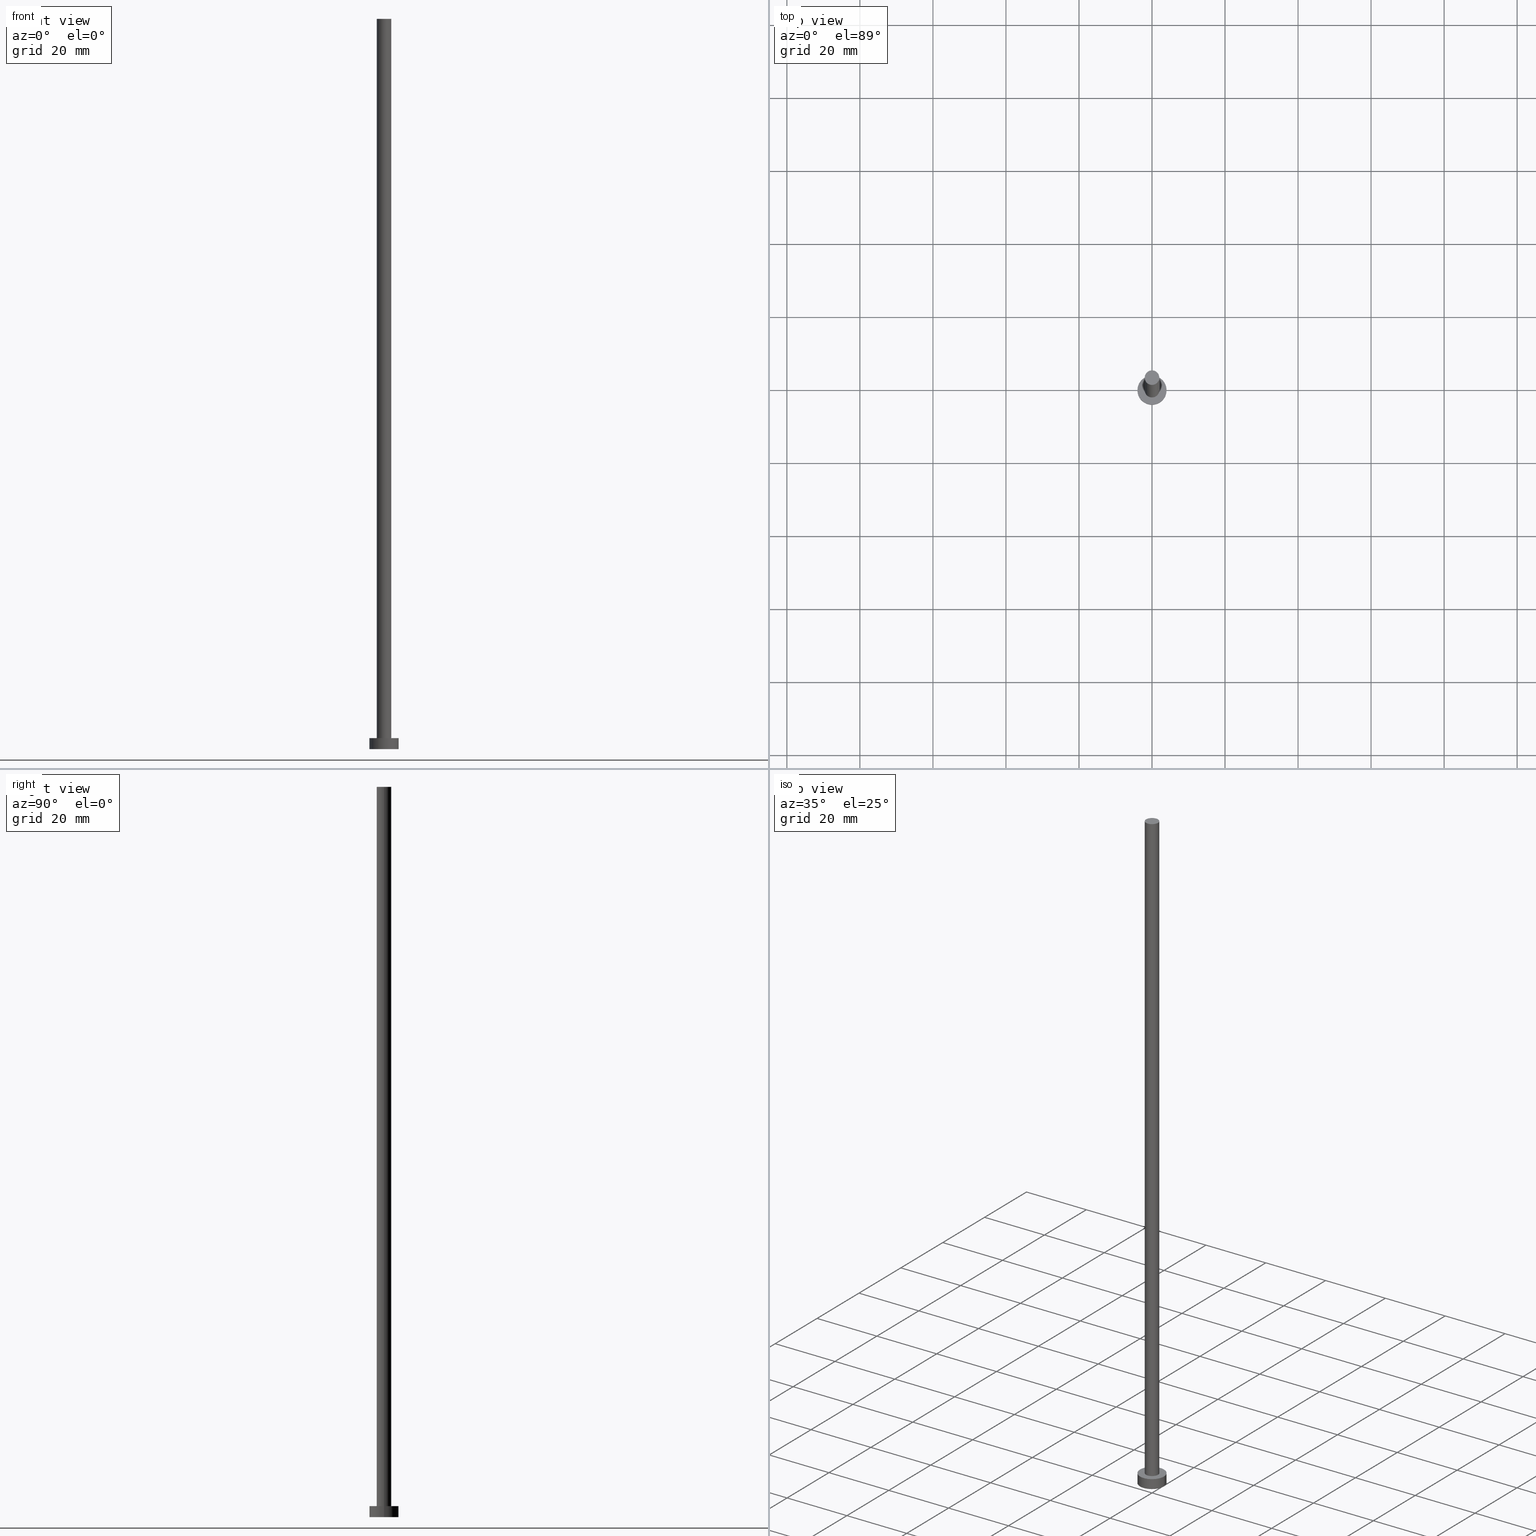
[diagram: canonical four-view strip — front | top / right | iso, engineering-drawing reading convention]
A machine part, canonical four-view strip (front | top / right | iso — engineering-drawing reading convention). The complete STEP part file that produces these views, byte-faithful:
ISO-10303-21;
HEADER;
FILE_DESCRIPTION (( 'STEP AP203' ),
    '1' );
FILE_NAME ('1355.STEP',
    '2023-02-12T12:39:28',
    ( '' ),
    ( '' ),
    'SwSTEP 2.0',
    'SolidWorks 2019',
    '' );
FILE_SCHEMA (( 'CONFIG_CONTROL_DESIGN' ));
ENDSEC;

DATA;
#1 = EDGE_CURVE ( 'NONE', #139, #216, #58, .T. ) ;
#2 = EDGE_LOOP ( 'NONE', ( #188, #251 ) ) ;
#3 = DIRECTION ( 'NONE',  ( 1.000000000000000000, 0.000000000000000000, 0.000000000000000000 ) ) ;
#4 = CC_DESIGN_DATE_AND_TIME_ASSIGNMENT ( #89, #248, ( #192 ) ) ;
#5 = PERSON_AND_ORGANIZATION_ROLE ( 'classification_officer' ) ;
#6 = ORIENTED_EDGE ( 'NONE', *, *, #223, .T. ) ;
#7 = DATE_TIME_ROLE ( 'classification_date' ) ;
#8 = MECHANICAL_CONTEXT ( 'NONE', #21, 'mechanical' ) ;
#9 = AXIS2_PLACEMENT_3D ( 'NONE', #142, #220, #178 ) ;
#10 = COORDINATED_UNIVERSAL_TIME_OFFSET ( 1, 0, .AHEAD. ) ;
#11 = ADVANCED_FACE ( 'NONE', ( #37 ), #201, .T. ) ;
#12 = PRODUCT_RELATED_PRODUCT_CATEGORY ( 'detail', '', ( #96 ) ) ;
#13 = ORIENTED_EDGE ( 'NONE', *, *, #181, .F. ) ;
#14 = DIRECTION ( 'NONE',  ( -0.000000000000000000, -0.000000000000000000, -1.000000000000000000 ) ) ;
#15 = UNCERTAINTY_MEASURE_WITH_UNIT (LENGTH_MEASURE( 1.000000000000000082E-05 ), #166, 'distance_accuracy_value', 'NONE');
#16 = FACE_OUTER_BOUND ( 'NONE', #177, .T. ) ;
#17 = ORIENTED_EDGE ( 'NONE', *, *, #41, .F. ) ;
#18 = CLOSED_SHELL ( 'NONE', ( #11, #57, #102, #239, #33, #53, #206 ) ) ;
#19 = CIRCLE ( 'NONE', #170, 4.000000000000000000 ) ;
#20 = CIRCLE ( 'NONE', #129, 4.000000000000000000 ) ;
#21 = APPLICATION_CONTEXT ( 'configuration controlled 3d designs of mechanical parts and assemblies' ) ;
#22 = EDGE_CURVE ( 'NONE', #193, #243, #45, .T. ) ;
#23 = CC_DESIGN_APPROVAL ( #86, ( #148 ) ) ;
#24 = PERSON ( 'NEUR�EN�', 'NEUR�EN�', 'NEUR�EN�', ('NEUR�EN�'), ('NEUR�EN�'), ('NEUR�EN�') ) ;
#25 =( NAMED_UNIT ( * ) SI_UNIT ( $, .STERADIAN. ) SOLID_ANGLE_UNIT ( ) );
#26 = DATE_AND_TIME ( #30, #210 ) ;
#27 = PERSON_AND_ORGANIZATION ( #24, #159 ) ;
#28 = APPROVAL_PERSON_ORGANIZATION ( #69, #86, #207 ) ;
#29 = ORIENTED_EDGE ( 'NONE', *, *, #223, .F. ) ;
#30 = CALENDAR_DATE ( 2023, 12, 2 ) ;
#31 = DIRECTION ( 'NONE',  ( -0.000000000000000000, -0.000000000000000000, -1.000000000000000000 ) ) ;
#32 = DATE_AND_TIME ( #68, #113 ) ;
#33 = ADVANCED_FACE ( 'NONE', ( #151 ), #88, .F. ) ;
#34 = LOCAL_TIME ( 13, 39, 28.00000000000000000, #171 ) ;
#35 = EDGE_CURVE ( 'NONE', #243, #193, #165, .T. ) ;
#36 = CARTESIAN_POINT ( 'NONE',  ( -2.000000000000000000, 0.000000000000000000, 3.000000000000000000 ) ) ;
#37 = FACE_OUTER_BOUND ( 'NONE', #77, .T. ) ;
#38 = ORIENTED_EDGE ( 'NONE', *, *, #136, .F. ) ;
#39 = CC_DESIGN_APPROVAL ( #48, ( #195 ) ) ;
#40 = CARTESIAN_POINT ( 'NONE',  ( 4.000000000000000000, 4.898587196589412829E-16, 0.000000000000000000 ) ) ;
#41 = EDGE_CURVE ( 'NONE', #224, #216, #20, .T. ) ;
#42 = DIRECTION ( 'NONE',  ( 1.000000000000000000, 0.000000000000000000, 0.000000000000000000 ) ) ;
#43 = APPROVAL_DATE_TIME ( #179, #48 ) ;
#44 = CARTESIAN_POINT ( 'NONE',  ( 0.000000000000000000, 0.000000000000000000, 0.000000000000000000 ) ) ;
#45 = CIRCLE ( 'NONE', #133, 2.000000000000000000 ) ;
#46 = APPROVAL_PERSON_ORGANIZATION ( #50, #218, #183 ) ;
#47 = COORDINATED_UNIVERSAL_TIME_OFFSET ( 1, 0, .AHEAD. ) ;
#48 = APPROVAL ( #152, 'NEUR�EN�' ) ;
#49 = APPLICATION_PROTOCOL_DEFINITION ( 'international standard', 'config_control_design', 1994, #21 ) ;
#50 = PERSON_AND_ORGANIZATION ( #24, #159 ) ;
#51 = AXIS2_PLACEMENT_3D ( 'NONE', #146, #31, #153 ) ;
#52 = CYLINDRICAL_SURFACE ( 'NONE', #194, 4.000000000000000000 ) ;
#53 = ADVANCED_FACE ( 'NONE', ( #209 ), #107, .T. ) ;
#54 = EDGE_LOOP ( 'NONE', ( #6, #108 ) ) ;
#55 = APPROVAL_ROLE ( '' ) ;
#56 = CARTESIAN_POINT ( 'NONE',  ( 4.000000000000000000, 4.898587196589412829E-16, 3.000000000000000000 ) ) ;
#57 = ADVANCED_FACE ( 'NONE', ( #70 ), #52, .T. ) ;
#58 = LINE ( 'NONE', #138, #90 ) ;
#59 = DIRECTION ( 'NONE',  ( 1.000000000000000000, 0.000000000000000000, -0.000000000000000000 ) ) ;
#60 = VERTEX_POINT ( 'NONE', #186 ) ;
#61 = FACE_OUTER_BOUND ( 'NONE', #54, .T. ) ;
#62 = DIRECTION ( 'NONE',  ( 0.000000000000000000, 0.000000000000000000, 1.000000000000000000 ) ) ;
#63 = DIRECTION ( 'NONE',  ( 1.000000000000000000, 0.000000000000000000, -0.000000000000000000 ) ) ;
#64 = ORIENTED_EDGE ( 'NONE', *, *, #136, .T. ) ;
#65 = CC_DESIGN_PERSON_AND_ORGANIZATION_ASSIGNMENT ( #83, #5, ( #148 ) ) ;
#66 = CIRCLE ( 'NONE', #222, 2.000000000000000000 ) ;
#67 = EDGE_LOOP ( 'NONE', ( #128, #75 ) ) ;
#68 = CALENDAR_DATE ( 2023, 12, 2 ) ;
#69 = PERSON_AND_ORGANIZATION ( #24, #159 ) ;
#70 = FACE_OUTER_BOUND ( 'NONE', #147, .T. ) ;
#71 = CC_DESIGN_APPROVAL ( #218, ( #192 ) ) ;
#72 = DIRECTION ( 'NONE',  ( -0.000000000000000000, -0.000000000000000000, -1.000000000000000000 ) ) ;
#73 = EDGE_CURVE ( 'NONE', #149, #243, #120, .T. ) ;
#74 = CALENDAR_DATE ( 2023, 12, 2 ) ;
#75 = ORIENTED_EDGE ( 'NONE', *, *, #35, .F. ) ;
#76 = LINE ( 'NONE', #56, #217 ) ;
#77 = EDGE_LOOP ( 'NONE', ( #162, #246, #126, #38 ) ) ;
#78 = VECTOR ( 'NONE', #154, 1000.000000000000000 ) ;
#79 = EDGE_CURVE ( 'NONE', #119, #139, #117, .T. ) ;
#80 = FACE_OUTER_BOUND ( 'NONE', #2, .T. ) ;
#81 =( GEOMETRIC_REPRESENTATION_CONTEXT ( 3 ) GLOBAL_UNCERTAINTY_ASSIGNED_CONTEXT ( ( #15 ) ) GLOBAL_UNIT_ASSIGNED_CONTEXT ( ( #166, #232, #25 ) ) REPRESENTATION_CONTEXT ( 'NONE', 'WORKASPACE' ) );
#82 = SECURITY_CLASSIFICATION_LEVEL ( 'unclassified' ) ;
#83 = PERSON_AND_ORGANIZATION ( #24, #159 ) ;
#84 = ORIENTED_EDGE ( 'NONE', *, *, #1, .T. ) ;
#85 = APPLICATION_PROTOCOL_DEFINITION ( 'international standard', 'config_control_design', 1994, #156 ) ;
#86 = APPROVAL ( #164, 'NEUR�EN�' ) ;
#87 = CARTESIAN_POINT ( 'NONE',  ( 2.000000000000000000, 2.449293598294706414E-16, 3.000000000000000000 ) ) ;
#88 = PLANE ( 'NONE',  #104 ) ;
#89 = DATE_AND_TIME ( #74, #34 ) ;
#90 = VECTOR ( 'NONE', #219, 1000.000000000000000 ) ;
#91 = CARTESIAN_POINT ( 'NONE',  ( 0.000000000000000000, 0.000000000000000000, 3.000000000000000000 ) ) ;
#92 = CARTESIAN_POINT ( 'NONE',  ( 4.000000000000000000, 4.898587196589412829E-16, 3.000000000000000000 ) ) ;
#93 = DIRECTION ( 'NONE',  ( -0.000000000000000000, -0.000000000000000000, -1.000000000000000000 ) ) ;
#94 = CARTESIAN_POINT ( 'NONE',  ( 0.000000000000000000, 0.000000000000000000, 3.000000000000000000 ) ) ;
#95 = AXIS2_PLACEMENT_3D ( 'NONE', #91, #99, #247 ) ;
#96 = PRODUCT ( '1355', '1355', '', ( #8 ) ) ;
#97 = LOCAL_TIME ( 13, 39, 28.00000000000000000, #132 ) ;
#98 = PRODUCT_DEFINITION_SHAPE ( 'NONE', 'NONE',  #192 ) ;
#99 = DIRECTION ( 'NONE',  ( 0.000000000000000000, 0.000000000000000000, 1.000000000000000000 ) ) ;
#100 = CARTESIAN_POINT ( 'NONE',  ( 0.000000000000000000, 0.000000000000000000, 200.0000000000000000 ) ) ;
#101 = APPROVAL_PERSON_ORGANIZATION ( #236, #48, #55 ) ;
#102 = ADVANCED_FACE ( 'NONE', ( #16 ), #174, .T. ) ;
#103 = DATE_AND_TIME ( #231, #130 ) ;
#104 = AXIS2_PLACEMENT_3D ( 'NONE', #111, #131, #249 ) ;
#105 = CC_DESIGN_SECURITY_CLASSIFICATION ( #148, ( #195 ) ) ;
#106 = APPROVAL_STATUS ( 'not_yet_approved' ) ;
#107 = CYLINDRICAL_SURFACE ( 'NONE', #228, 2.000000000000000000 ) ;
#108 = ORIENTED_EDGE ( 'NONE', *, *, #79, .T. ) ;
#109 = SHAPE_DEFINITION_REPRESENTATION ( #98, #185 ) ;
#110 = CARTESIAN_POINT ( 'NONE',  ( 0.000000000000000000, 0.000000000000000000, 3.000000000000000000 ) ) ;
#111 = CARTESIAN_POINT ( 'NONE',  ( 0.000000000000000000, 0.000000000000000000, 0.000000000000000000 ) ) ;
#112 = PERSON_AND_ORGANIZATION ( #24, #159 ) ;
#113 = LOCAL_TIME ( 13, 39, 28.00000000000000000, #168 ) ;
#114 = VECTOR ( 'NONE', #116, 1000.000000000000000 ) ;
#115 = EDGE_CURVE ( 'NONE', #119, #224, #76, .T. ) ;
#116 = DIRECTION ( 'NONE',  ( -0.000000000000000000, -0.000000000000000000, -1.000000000000000000 ) ) ;
#117 = CIRCLE ( 'NONE', #150, 4.000000000000000000 ) ;
#118 = AXIS2_PLACEMENT_3D ( 'NONE', #160, #244, #63 ) ;
#119 = VERTEX_POINT ( 'NONE', #92 ) ;
#120 = LINE ( 'NONE', #255, #114 ) ;
#121 = ORIENTED_EDGE ( 'NONE', *, *, #226, .F. ) ;
#122 = PERSON_AND_ORGANIZATION ( #24, #159 ) ;
#123 = CARTESIAN_POINT ( 'NONE',  ( 0.000000000000000000, 0.000000000000000000, 3.000000000000000000 ) ) ;
#124 = DIRECTION ( 'NONE',  ( 0.000000000000000000, 0.000000000000000000, 1.000000000000000000 ) ) ;
#125 = DIRECTION ( 'NONE',  ( 1.000000000000000000, 0.000000000000000000, 0.000000000000000000 ) ) ;
#126 = ORIENTED_EDGE ( 'NONE', *, *, #35, .T. ) ;
#127 = DIRECTION ( 'NONE',  ( 0.000000000000000000, 0.000000000000000000, 1.000000000000000000 ) ) ;
#128 = ORIENTED_EDGE ( 'NONE', *, *, #22, .F. ) ;
#129 = AXIS2_PLACEMENT_3D ( 'NONE', #44, #62, #42 ) ;
#130 = LOCAL_TIME ( 13, 39, 28.00000000000000000, #10 ) ;
#131 = DIRECTION ( 'NONE',  ( 0.000000000000000000, 0.000000000000000000, 1.000000000000000000 ) ) ;
#132 = COORDINATED_UNIVERSAL_TIME_OFFSET ( 1, 0, .AHEAD. ) ;
#133 = AXIS2_PLACEMENT_3D ( 'NONE', #123, #127, #3 ) ;
#134 = CARTESIAN_POINT ( 'NONE',  ( 0.000000000000000000, 0.000000000000000000, 0.000000000000000000 ) ) ;
#135 = LINE ( 'NONE', #215, #78 ) ;
#136 = EDGE_CURVE ( 'NONE', #60, #193, #135, .T. ) ;
#137 = AXIS2_PLACEMENT_3D ( 'NONE', #94, #93, #196 ) ;
#138 = CARTESIAN_POINT ( 'NONE',  ( -4.000000000000000000, 0.000000000000000000, 3.000000000000000000 ) ) ;
#139 = VERTEX_POINT ( 'NONE', #191 ) ;
#140 = CARTESIAN_POINT ( 'NONE',  ( 0.000000000000000000, 0.000000000000000000, 200.0000000000000000 ) ) ;
#141 = CIRCLE ( 'NONE', #176, 2.000000000000000000 ) ;
#142 = CARTESIAN_POINT ( 'NONE',  ( 0.000000000000000000, 0.000000000000000000, 3.000000000000000000 ) ) ;
#143 = PERSON_AND_ORGANIZATION_ROLE ( 'design_supplier' ) ;
#144 = PLANE ( 'NONE',  #155 ) ;
#145 = CC_DESIGN_PERSON_AND_ORGANIZATION_ASSIGNMENT ( #27, #230, ( #96 ) ) ;
#146 = CARTESIAN_POINT ( 'NONE',  ( 0.000000000000000000, 0.000000000000000000, 200.0000000000000000 ) ) ;
#147 = EDGE_LOOP ( 'NONE', ( #208, #227, #240, #245 ) ) ;
#148 = SECURITY_CLASSIFICATION ( '', '', #82 ) ;
#149 = VERTEX_POINT ( 'NONE', #237 ) ;
#150 = AXIS2_PLACEMENT_3D ( 'NONE', #157, #190, #197 ) ;
#151 = FACE_OUTER_BOUND ( 'NONE', #254, .T. ) ;
#152 = APPROVAL_STATUS ( 'not_yet_approved' ) ;
#153 = DIRECTION ( 'NONE',  ( -1.000000000000000000, 0.000000000000000000, 0.000000000000000000 ) ) ;
#154 = DIRECTION ( 'NONE',  ( -0.000000000000000000, -0.000000000000000000, -1.000000000000000000 ) ) ;
#155 = AXIS2_PLACEMENT_3D ( 'NONE', #100, #124, #59 ) ;
#156 = APPLICATION_CONTEXT ( 'configuration controlled 3d designs of mechanical parts and assemblies' ) ;
#157 = CARTESIAN_POINT ( 'NONE',  ( 0.000000000000000000, 0.000000000000000000, 3.000000000000000000 ) ) ;
#158 = DIRECTION ( 'NONE',  ( 0.000000000000000000, 0.000000000000000000, 1.000000000000000000 ) ) ;
#159 = ORGANIZATION ( 'NEUR�EN�', 'NEUR�EN�', '' ) ;
#160 = CARTESIAN_POINT ( 'NONE',  ( 0.000000000000000000, 0.000000000000000000, 3.000000000000000000 ) ) ;
#161 = EDGE_LOOP ( 'NONE', ( #211, #121, #64, #180 ) ) ;
#162 = ORIENTED_EDGE ( 'NONE', *, *, #187, .F. ) ;
#163 = CARTESIAN_POINT ( 'NONE',  ( 0.000000000000000000, 0.000000000000000000, 0.000000000000000000 ) ) ;
#164 = APPROVAL_STATUS ( 'not_yet_approved' ) ;
#165 = CIRCLE ( 'NONE', #95, 2.000000000000000000 ) ;
#166 =( LENGTH_UNIT ( ) NAMED_UNIT ( * ) SI_UNIT ( .MILLI., .METRE. ) );
#167 = ORIENTED_EDGE ( 'NONE', *, *, #181, .T. ) ;
#168 = COORDINATED_UNIVERSAL_TIME_OFFSET ( 1, 0, .AHEAD. ) ;
#169 = DIRECTION ( 'NONE',  ( -1.000000000000000000, 0.000000000000000000, 0.000000000000000000 ) ) ;
#170 = AXIS2_PLACEMENT_3D ( 'NONE', #134, #173, #253 ) ;
#171 = COORDINATED_UNIVERSAL_TIME_OFFSET ( 1, 0, .AHEAD. ) ;
#172 = CC_DESIGN_PERSON_AND_ORGANIZATION_ASSIGNMENT ( #122, #143, ( #195 ) ) ;
#173 = DIRECTION ( 'NONE',  ( 0.000000000000000000, 0.000000000000000000, 1.000000000000000000 ) ) ;
#174 = CYLINDRICAL_SURFACE ( 'NONE', #137, 4.000000000000000000 ) ;
#175 = CC_DESIGN_PERSON_AND_ORGANIZATION_ASSIGNMENT ( #242, #221, ( #195 ) ) ;
#176 = AXIS2_PLACEMENT_3D ( 'NONE', #140, #202, #205 ) ;
#177 = EDGE_LOOP ( 'NONE', ( #252, #29, #84, #167 ) ) ;
#178 = DIRECTION ( 'NONE',  ( 1.000000000000000000, 0.000000000000000000, 0.000000000000000000 ) ) ;
#179 = DATE_AND_TIME ( #199, #97 ) ;
#180 = ORIENTED_EDGE ( 'NONE', *, *, #22, .T. ) ;
#181 = EDGE_CURVE ( 'NONE', #216, #224, #19, .T. ) ;
#182 = CIRCLE ( 'NONE', #9, 4.000000000000000000 ) ;
#183 = APPROVAL_ROLE ( '' ) ;
#184 = CARTESIAN_POINT ( 'NONE',  ( 0.000000000000000000, 0.000000000000000000, 200.0000000000000000 ) ) ;
#185 = ADVANCED_BREP_SHAPE_REPRESENTATION ( '1355', ( #200, #213 ), #81 ) ;
#186 = CARTESIAN_POINT ( 'NONE',  ( -2.000000000000000000, 0.000000000000000000, 200.0000000000000000 ) ) ;
#187 = EDGE_CURVE ( 'NONE', #149, #60, #141, .T. ) ;
#188 = ORIENTED_EDGE ( 'NONE', *, *, #226, .T. ) ;
#189 = PERSON_AND_ORGANIZATION_ROLE ( 'creator' ) ;
#190 = DIRECTION ( 'NONE',  ( 0.000000000000000000, 0.000000000000000000, 1.000000000000000000 ) ) ;
#191 = CARTESIAN_POINT ( 'NONE',  ( -4.000000000000000000, 0.000000000000000000, 3.000000000000000000 ) ) ;
#192 = PRODUCT_DEFINITION ( 'NEZN�M�', '', #195, #238 ) ;
#193 = VERTEX_POINT ( 'NONE', #36 ) ;
#194 = AXIS2_PLACEMENT_3D ( 'NONE', #110, #72, #235 ) ;
#195 = PRODUCT_DEFINITION_FORMATION_WITH_SPECIFIED_SOURCE ( 'LIBOVOLN�', '', #96, .NOT_KNOWN. ) ;
#196 = DIRECTION ( 'NONE',  ( -1.000000000000000000, 0.000000000000000000, 0.000000000000000000 ) ) ;
#197 = DIRECTION ( 'NONE',  ( 1.000000000000000000, 0.000000000000000000, 0.000000000000000000 ) ) ;
#198 = CARTESIAN_POINT ( 'NONE',  ( -4.000000000000000000, 0.000000000000000000, 0.000000000000000000 ) ) ;
#199 = CALENDAR_DATE ( 2023, 12, 2 ) ;
#200 = MANIFOLD_SOLID_BREP ( 'P�idat vysunut�m3', #18 ) ;
#201 = CYLINDRICAL_SURFACE ( 'NONE', #51, 2.000000000000000000 ) ;
#202 = DIRECTION ( 'NONE',  ( 0.000000000000000000, 0.000000000000000000, 1.000000000000000000 ) ) ;
#203 = CARTESIAN_POINT ( 'NONE',  ( 0.000000000000000000, 0.000000000000000000, 200.0000000000000000 ) ) ;
#204 = PLANE ( 'NONE',  #118 ) ;
#205 = DIRECTION ( 'NONE',  ( 1.000000000000000000, 0.000000000000000000, 0.000000000000000000 ) ) ;
#206 = ADVANCED_FACE ( 'NONE', ( #80 ), #144, .T. ) ;
#207 = APPROVAL_ROLE ( '' ) ;
#208 = ORIENTED_EDGE ( 'NONE', *, *, #79, .F. ) ;
#209 = FACE_OUTER_BOUND ( 'NONE', #161, .T. ) ;
#210 = LOCAL_TIME ( 13, 39, 28.00000000000000000, #47 ) ;
#211 = ORIENTED_EDGE ( 'NONE', *, *, #73, .F. ) ;
#212 = APPROVAL_DATE_TIME ( #32, #218 ) ;
#213 = AXIS2_PLACEMENT_3D ( 'NONE', #163, #229, #125 ) ;
#214 = CC_DESIGN_PERSON_AND_ORGANIZATION_ASSIGNMENT ( #112, #189, ( #192 ) ) ;
#215 = CARTESIAN_POINT ( 'NONE',  ( -2.000000000000000000, 0.000000000000000000, 200.0000000000000000 ) ) ;
#216 = VERTEX_POINT ( 'NONE', #198 ) ;
#217 = VECTOR ( 'NONE', #14, 1000.000000000000000 ) ;
#218 = APPROVAL ( #106, 'NEUR�EN�' ) ;
#219 = DIRECTION ( 'NONE',  ( -0.000000000000000000, -0.000000000000000000, -1.000000000000000000 ) ) ;
#220 = DIRECTION ( 'NONE',  ( 0.000000000000000000, 0.000000000000000000, 1.000000000000000000 ) ) ;
#221 = PERSON_AND_ORGANIZATION_ROLE ( 'creator' ) ;
#222 = AXIS2_PLACEMENT_3D ( 'NONE', #203, #158, #241 ) ;
#223 = EDGE_CURVE ( 'NONE', #139, #119, #182, .T. ) ;
#224 = VERTEX_POINT ( 'NONE', #40 ) ;
#225 = FACE_BOUND ( 'NONE', #67, .T. ) ;
#226 = EDGE_CURVE ( 'NONE', #60, #149, #66, .T. ) ;
#227 = ORIENTED_EDGE ( 'NONE', *, *, #115, .T. ) ;
#228 = AXIS2_PLACEMENT_3D ( 'NONE', #184, #234, #169 ) ;
#229 = DIRECTION ( 'NONE',  ( 0.000000000000000000, 0.000000000000000000, 1.000000000000000000 ) ) ;
#230 = PERSON_AND_ORGANIZATION_ROLE ( 'design_owner' ) ;
#231 = CALENDAR_DATE ( 2023, 12, 2 ) ;
#232 =( NAMED_UNIT ( * ) PLANE_ANGLE_UNIT ( ) SI_UNIT ( $, .RADIAN. ) );
#233 = APPROVAL_DATE_TIME ( #103, #86 ) ;
#234 = DIRECTION ( 'NONE',  ( -0.000000000000000000, -0.000000000000000000, -1.000000000000000000 ) ) ;
#235 = DIRECTION ( 'NONE',  ( -1.000000000000000000, 0.000000000000000000, 0.000000000000000000 ) ) ;
#236 = PERSON_AND_ORGANIZATION ( #24, #159 ) ;
#237 = CARTESIAN_POINT ( 'NONE',  ( 2.000000000000000000, 2.449293598294706414E-16, 200.0000000000000000 ) ) ;
#238 = DESIGN_CONTEXT ( 'detailed design', #156, 'design' ) ;
#239 = ADVANCED_FACE ( 'NONE', ( #225, #61 ), #204, .T. ) ;
#240 = ORIENTED_EDGE ( 'NONE', *, *, #41, .T. ) ;
#241 = DIRECTION ( 'NONE',  ( 1.000000000000000000, 0.000000000000000000, 0.000000000000000000 ) ) ;
#242 = PERSON_AND_ORGANIZATION ( #24, #159 ) ;
#243 = VERTEX_POINT ( 'NONE', #87 ) ;
#244 = DIRECTION ( 'NONE',  ( 0.000000000000000000, 0.000000000000000000, 1.000000000000000000 ) ) ;
#245 = ORIENTED_EDGE ( 'NONE', *, *, #1, .F. ) ;
#246 = ORIENTED_EDGE ( 'NONE', *, *, #73, .T. ) ;
#247 = DIRECTION ( 'NONE',  ( 1.000000000000000000, 0.000000000000000000, 0.000000000000000000 ) ) ;
#248 = DATE_TIME_ROLE ( 'creation_date' ) ;
#249 = DIRECTION ( 'NONE',  ( 1.000000000000000000, 0.000000000000000000, -0.000000000000000000 ) ) ;
#250 = CC_DESIGN_DATE_AND_TIME_ASSIGNMENT ( #26, #7, ( #148 ) ) ;
#251 = ORIENTED_EDGE ( 'NONE', *, *, #187, .T. ) ;
#252 = ORIENTED_EDGE ( 'NONE', *, *, #115, .F. ) ;
#253 = DIRECTION ( 'NONE',  ( 1.000000000000000000, 0.000000000000000000, 0.000000000000000000 ) ) ;
#254 = EDGE_LOOP ( 'NONE', ( #13, #17 ) ) ;
#255 = CARTESIAN_POINT ( 'NONE',  ( 2.000000000000000000, 2.449293598294706414E-16, 200.0000000000000000 ) ) ;
ENDSEC;
END-ISO-10303-21;
